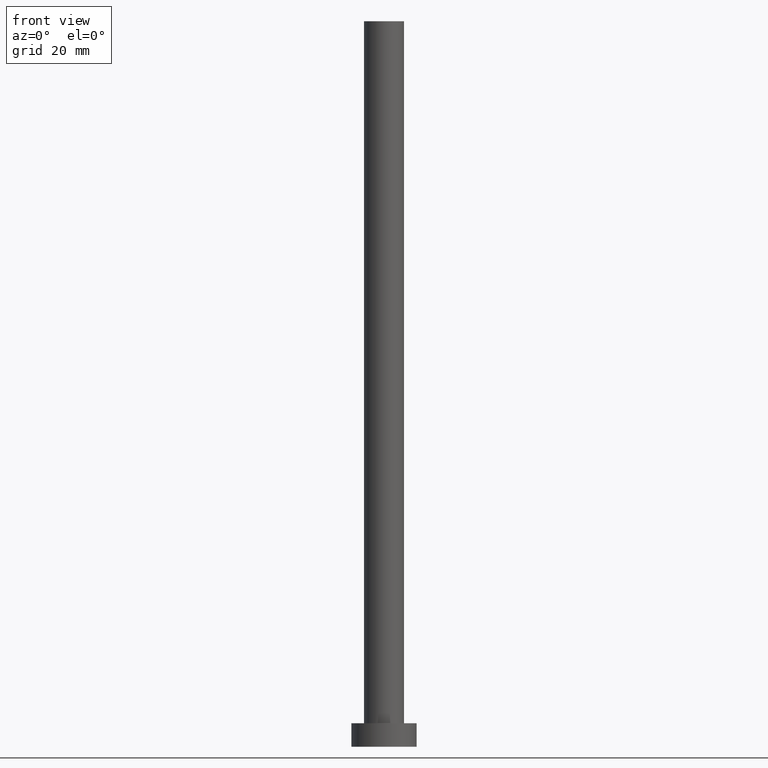
[diagram: clean part render]
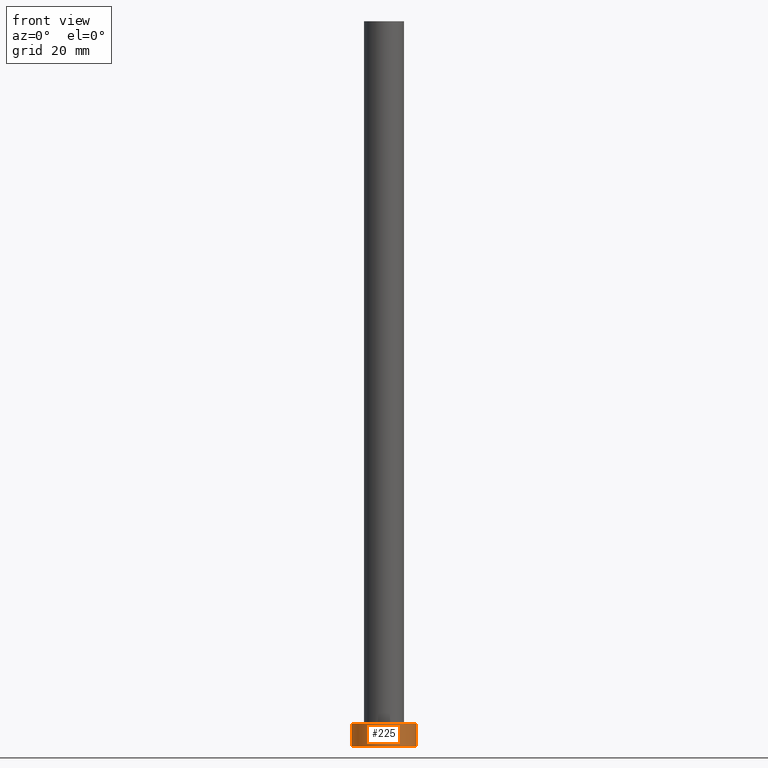
[diagram: same view with one face highlighted and labeled with its STEP entity id]
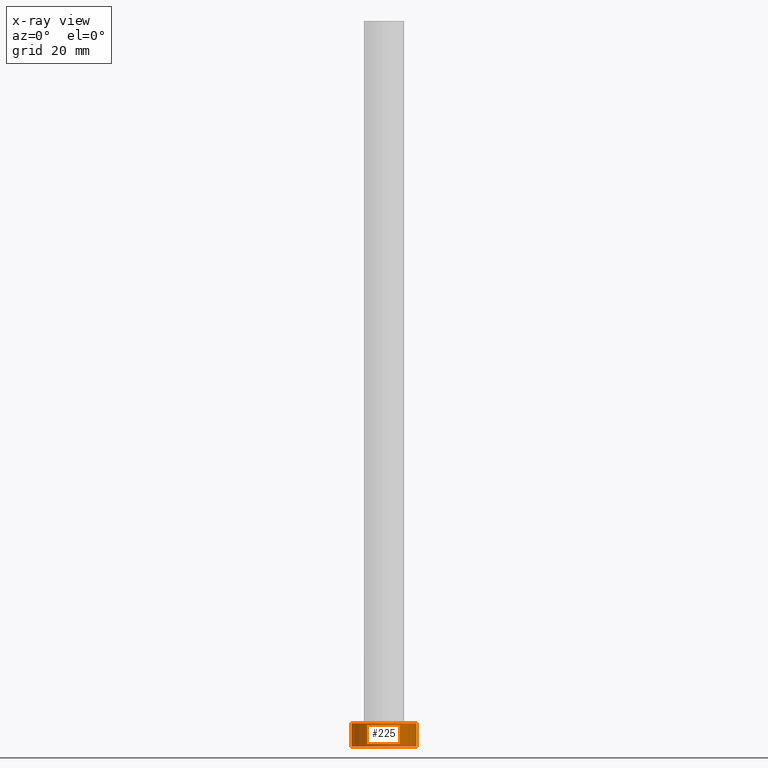
[diagram: x-ray of the same camera — body ghosted, the highlighted face saturated]
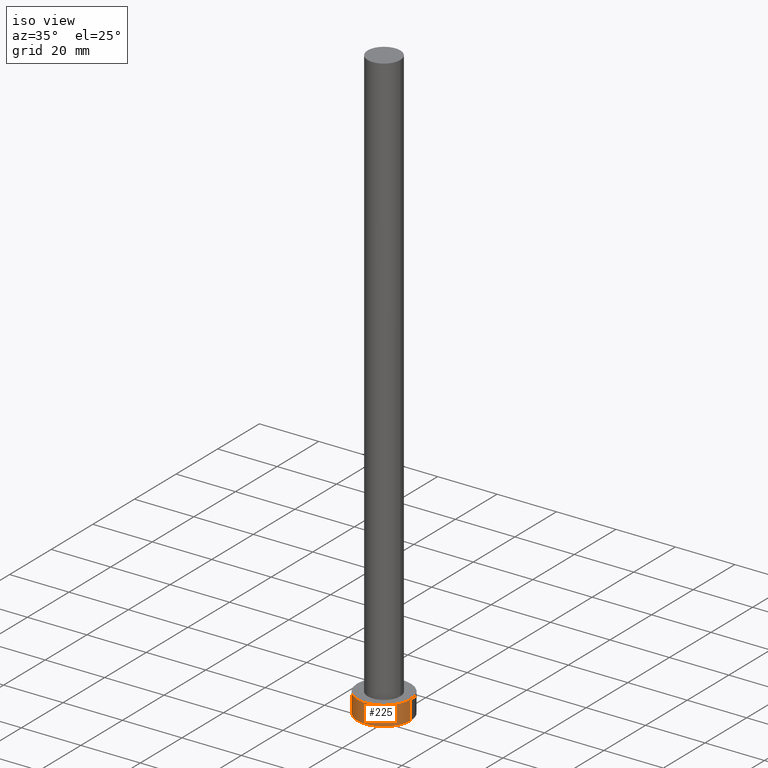
[diagram: same view with one face highlighted and labeled with its STEP entity id]
A machine part, front view. The second image highlights one B-rep face of the part: STEP entity #225.
The next image is the same camera in x-ray: the body ghosted, the highlighted face saturated — about 0% of this face is hidden behind the body in this view.
A second angle (iso view) of the same face is appended — the face is thin or edge-on in the first view.
In plain terms, the highlighted cylindrical surface (edge-blend (fillet) strip) has radius 9 mm, axis along (-0, -0, -1).
Its self-contained STEP definition (entity closure, byte-faithful):
#7 = ORIENTED_EDGE ( 'NONE', *, *, #56, .T. ) ;
#19 = CARTESIAN_POINT ( 'NONE',  ( 0.000000000000000000, 0.000000000000000000, 6.500000000000000000 ) ) ;
#28 = VERTEX_POINT ( 'NONE', #70 ) ;
#32 = EDGE_CURVE ( 'NONE', #93, #206, #106, .T. ) ;
#47 = CIRCLE ( 'NONE', #243, 9.000000000000000000 ) ;
#48 = ORIENTED_EDGE ( 'NONE', *, *, #32, .F. ) ;
#49 = AXIS2_PLACEMENT_3D ( 'NONE', #19, #176, #64 ) ;
#50 = DIRECTION ( 'NONE',  ( 1.000000000000000000, 0.000000000000000000, 0.000000000000000000 ) ) ;
#51 = EDGE_CURVE ( 'NONE', #93, #242, #150, .T. ) ;
#56 = EDGE_CURVE ( 'NONE', #242, #28, #47, .T. ) ;
#64 = DIRECTION ( 'NONE',  ( -1.000000000000000000, 0.000000000000000000, 0.000000000000000000 ) ) ;
#67 = CARTESIAN_POINT ( 'NONE',  ( 9.000000000000000000, 1.102182119232617517E-15, 6.500000000000000000 ) ) ;
#70 = CARTESIAN_POINT ( 'NONE',  ( 9.000000000000000000, 1.102182119232617517E-15, 0.000000000000000000 ) ) ;
#76 = DIRECTION ( 'NONE',  ( 0.000000000000000000, 0.000000000000000000, 1.000000000000000000 ) ) ;
#90 = ORIENTED_EDGE ( 'NONE', *, *, #51, .T. ) ;
#92 = CARTESIAN_POINT ( 'NONE',  ( 0.000000000000000000, 0.000000000000000000, 6.500000000000000000 ) ) ;
#93 = VERTEX_POINT ( 'NONE', #105 ) ;
#100 = VECTOR ( 'NONE', #103, 1000.000000000000000 ) ;
#103 = DIRECTION ( 'NONE',  ( -0.000000000000000000, -0.000000000000000000, -1.000000000000000000 ) ) ;
#105 = CARTESIAN_POINT ( 'NONE',  ( -9.000000000000000000, 0.000000000000000000, 6.500000000000000000 ) ) ;
#106 = CIRCLE ( 'NONE', #109, 9.000000000000000000 ) ;
#109 = AXIS2_PLACEMENT_3D ( 'NONE', #92, #251, #50 ) ;
#111 = EDGE_LOOP ( 'NONE', ( #223, #48, #90, #7 ) ) ;
#121 = CARTESIAN_POINT ( 'NONE',  ( 9.000000000000000000, 1.102182119232617517E-15, 6.500000000000000000 ) ) ;
#123 = FACE_OUTER_BOUND ( 'NONE', #111, .T. ) ;
#139 = CYLINDRICAL_SURFACE ( 'NONE', #49, 9.000000000000000000 ) ;
#150 = LINE ( 'NONE', #232, #100 ) ;
#166 = EDGE_CURVE ( 'NONE', #206, #28, #216, .T. ) ;
#176 = DIRECTION ( 'NONE',  ( -0.000000000000000000, -0.000000000000000000, -1.000000000000000000 ) ) ;
#195 = CARTESIAN_POINT ( 'NONE',  ( -9.000000000000000000, 0.000000000000000000, 0.000000000000000000 ) ) ;
#206 = VERTEX_POINT ( 'NONE', #67 ) ;
#210 = DIRECTION ( 'NONE',  ( 1.000000000000000000, 0.000000000000000000, 0.000000000000000000 ) ) ;
#216 = LINE ( 'NONE', #121, #249 ) ;
#223 = ORIENTED_EDGE ( 'NONE', *, *, #166, .F. ) ;
#225 = ADVANCED_FACE ( 'NONE', ( #123 ), #139, .T. ) ;
#230 = CARTESIAN_POINT ( 'NONE',  ( 0.000000000000000000, 0.000000000000000000, 0.000000000000000000 ) ) ;
#232 = CARTESIAN_POINT ( 'NONE',  ( -9.000000000000000000, 0.000000000000000000, 6.500000000000000000 ) ) ;
#234 = DIRECTION ( 'NONE',  ( -0.000000000000000000, -0.000000000000000000, -1.000000000000000000 ) ) ;
#242 = VERTEX_POINT ( 'NONE', #195 ) ;
#243 = AXIS2_PLACEMENT_3D ( 'NONE', #230, #76, #210 ) ;
#249 = VECTOR ( 'NONE', #234, 1000.000000000000000 ) ;
#251 = DIRECTION ( 'NONE',  ( 0.000000000000000000, 0.000000000000000000, 1.000000000000000000 ) ) ;